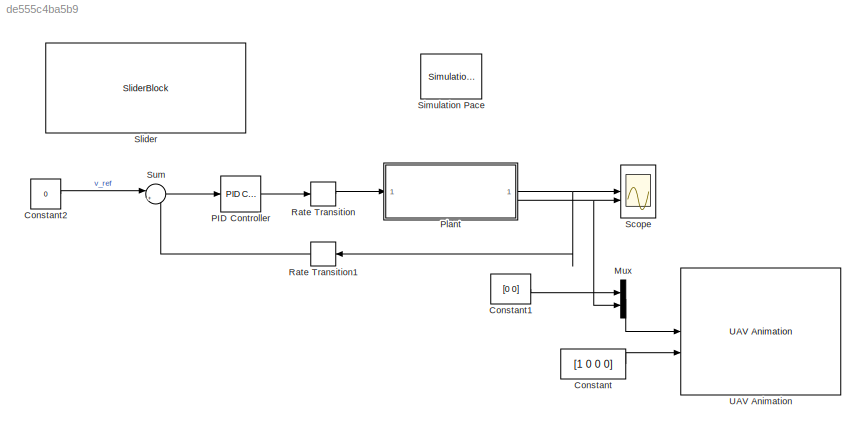
MODEL slx_de555c4ba5b9
KIND model
CONFIG AbsTol = auto
CONFIG EnableMultiTasking = off
CONFIG FixedStep = auto
CONFIG MaxStep = auto
CONFIG MinStep = auto
CONFIG RelTol = 1e-3
CONFIG SampleTimeConstraint = Unconstrained
CONFIG SolverName = VariableStepAuto
CONFIG StartTime = 0.0
CONFIG StopTime = inf
BLOCK [Constant] Constant
  Value = [1 0 0 0]
BLOCK [Constant] Constant1
  Value = [0 0]
BLOCK [Constant] Constant2
  Value = 0
BLOCK [Mux] Mux
  DisplayOption = bar
  Inputs = 2
BLOCK [Reference] PID Controller  REF=slpidlib/PID Controller
  LibrarySourceBlock = simulink/Continuous/PID Controller
  SourceBlock = slpidlib/PID Controller
  SourceType = PID 1dof
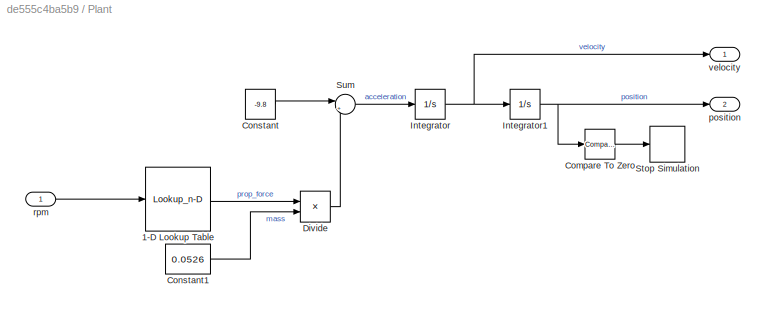
BLOCK [SubSystem] Plant
BLOCK [Lookup_n-D] Plant/1-D Lookup Table
  BreakpointsForDimension1 = PropData.rpm
  InputPortMap = u0
  InternalRulePriority = Speed
  NumberOfTableDimensions = 1
  RndMeth = Simplest
  Table = PropData.liftForce_N
BLOCK [Reference] Plant/Compare To Zero  REF=simulink/Logic and Bit
Operations/Compare
To Zero
  SourceBlock = simulink/Logic and Bit\nOperations/Compare\nTo Zero
  SourceType = Compare To Zero
BLOCK [Constant] Plant/Constant
  Value = -9.8
BLOCK [Constant] Plant/Constant1
  Value = 0.0526
BLOCK [Product] Plant/Divide
  Inputs = */
BLOCK [Integrator] Plant/Integrator
  InitialCondition = 0.5
BLOCK [Integrator] Plant/Integrator1
  InitialCondition = 2
BLOCK [Stop] Plant/Stop Simulation
BLOCK [Sum] Plant/Sum
  Inputs = |++
BLOCK [Outport] Plant/position
  Port = 2
BLOCK [Inport] Plant/rpm
BLOCK [Outport] Plant/velocity
BLOCK [RateTransition] Rate Transition
BLOCK [RateTransition] Rate Transition1
BLOCK [Scope] Scope
  Floating = off
  NumInputPorts = 2
  ScopeSpecificationString = Simulink.scopes.TimeScopeBlockCfg('CurrentConfiguration', extmgr.ConfigurationSet(extmgr.Configuration('Core','General UI',true),extmgr.Configuration('Core','Source UI',true),extmgr.Configuration('Sources','WiredSimulink',true),extmgr.Configuration('Visuals','Time Domain',true,'SerializedDisplays',{struct('MinYLimReal','-1.06397','MaxYLimReal','0.67377','YLabelReal','','MinYLimMag','0.00000','MaxY...<+2156ch>
BLOCK [Reference] Simulation Pace  REF=aerolibanimutils/Simulation Pace
  AttributesFormatString = %<SleepMode>\n%<SimulationPace> sec/sec
  SourceBlock = aerolibanimutils/Simulation Pace
  SourceType = Simulation Pace
BLOCK [SliderBlock] Slider
  ScaleMax = 10
  ScaleMin = -10
BLOCK [Sum] Sum
  Inputs = |+-
BLOCK [Reference] UAV Animation  REF=uavutilslib/UAV Animation
  SourceBlock = uavutilslib/UAV Animation
  SourceType = uav.sluav.internal.system.UAVAnimation
LINE Constant1:1 -> Mux:1
LINE Constant2:1 -> Sum:1
LINE Constant:1 -> UAV Animation:2
LINE Mux:1 -> UAV Animation:1
LINE PID Controller:1 -> Rate Transition:1
LINE Plant/1-D Lookup Table:1 -> Plant/Divide:1
LINE Plant/Compare To Zero:1 -> Plant/Stop Simulation:1
LINE Plant/Constant1:1 -> Plant/Divide:2
LINE Plant/Constant:1 -> Plant/Sum:1
LINE Plant/Divide:1 -> Plant/Sum:2
NET Plant/Integrator1:1 -> Plant/Compare To Zero:1, Plant/position:1
NET Plant/Integrator:1 -> Plant/Integrator1:1, Plant/velocity:1
LINE Plant/Sum:1 -> Plant/Integrator:1
LINE Plant/rpm:1 -> Plant/1-D Lookup Table:1
NET Plant:1 -> Rate Transition1:1, Scope:1
NET Plant:2 -> Mux:2, Scope:2
LINE Rate Transition1:1 -> Sum:2
LINE Rate Transition:1 -> Plant:1
LINE Sum:1 -> PID Controller:1
note: NET lines group one-source signal fan-out (src -> all destinations, sorted); 1:1 wires keep LINE
